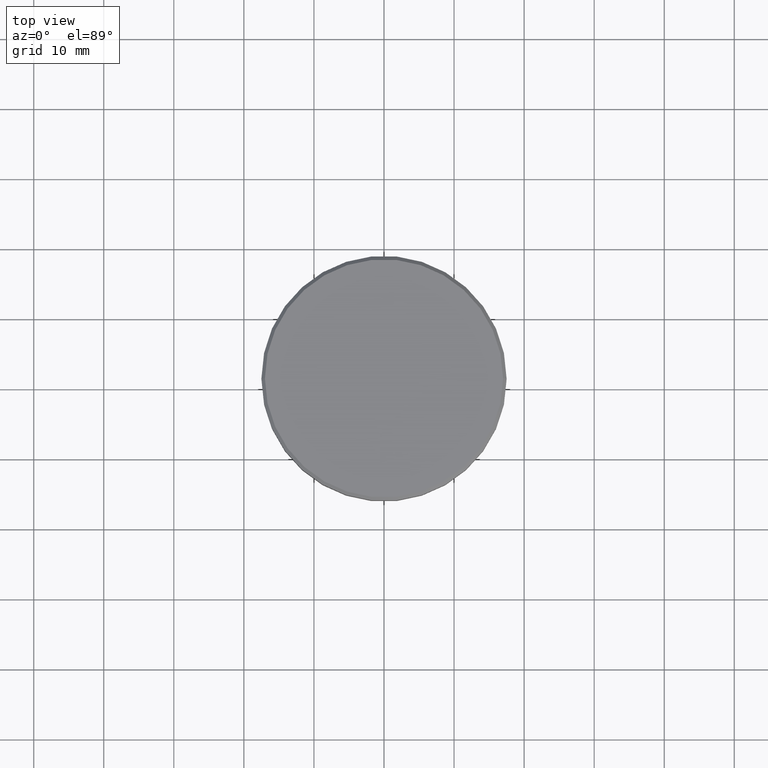
[diagram: clean part render]
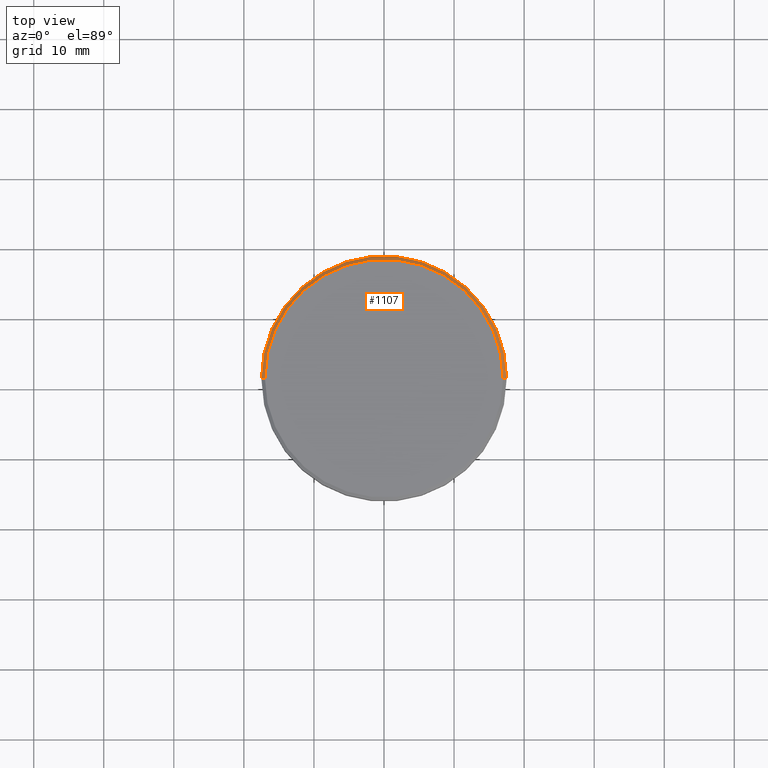
[diagram: same view with one face highlighted and labeled with its STEP entity id]
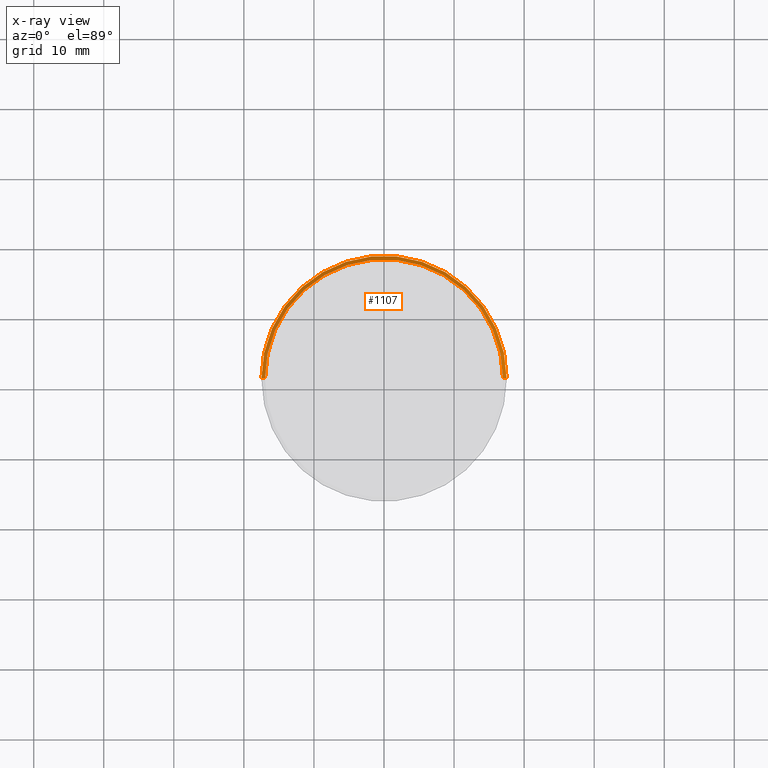
[diagram: x-ray of the same camera — body ghosted, the highlighted face saturated]
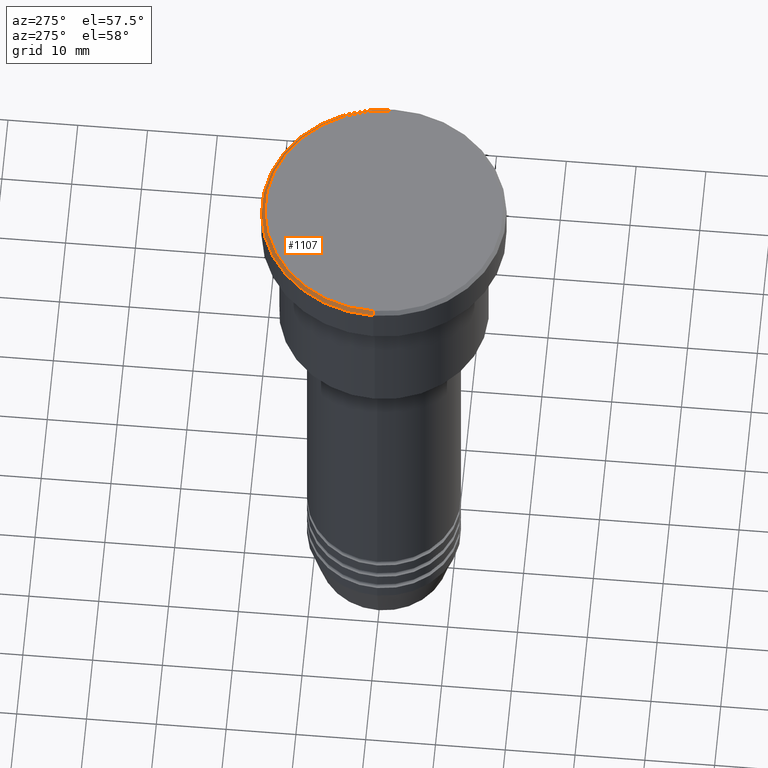
[diagram: same view with one face highlighted and labeled with its STEP entity id]
A machine part, top view. The second image highlights one B-rep face of the part: STEP entity #1107.
The next image is the same camera in x-ray: the body ghosted, the highlighted face saturated — about 0% of this face is hidden behind the body in this view.
A second angle (auxiliary view) of the same face is appended — the face is thin or edge-on in the first view.
In plain terms, the highlighted conical surface has half-angle 45 deg.
Its self-contained STEP definition (entity closure, byte-faithful):
#7 = ORIENTED_EDGE ( 'NONE', *, *, #210, .F. ) ;
#30 = CARTESIAN_POINT ( 'NONE',  ( 0.000000000000000000, 0.000000000000000000, 0.000000000000000000 ) ) ;
#111 = DIRECTION ( 'NONE',  ( 0.7071067811865474617, 8.659560562354932858E-17, -0.7071067811865474617 ) ) ;
#132 = LINE ( 'NONE', #499, #1138 ) ;
#155 = FACE_OUTER_BOUND ( 'NONE', #690, .T. ) ;
#169 = EDGE_CURVE ( 'NONE', #450, #250, #132, .T. ) ;
#177 = CONICAL_SURFACE ( 'NONE', #479, 17.00000000000002842, 0.7853981633974482790 ) ;
#210 = EDGE_CURVE ( 'NONE', #250, #271, #781, .T. ) ;
#250 = VERTEX_POINT ( 'NONE', #761 ) ;
#253 = EDGE_CURVE ( 'NONE', #687, #271, #1026, .T. ) ;
#263 = ORIENTED_EDGE ( 'NONE', *, *, #253, .T. ) ;
#271 = VERTEX_POINT ( 'NONE', #772 ) ;
#415 = EDGE_CURVE ( 'NONE', #687, #450, #1076, .T. ) ;
#450 = VERTEX_POINT ( 'NONE', #1153 ) ;
#479 = AXIS2_PLACEMENT_3D ( 'NONE', #1071, #815, #1166 ) ;
#481 = CARTESIAN_POINT ( 'NONE',  ( 17.00000000000002842, 2.081899558550503830E-15, 0.000000000000000000 ) ) ;
#499 = CARTESIAN_POINT ( 'NONE',  ( -17.00000000000002842, 0.000000000000000000, 0.000000000000000000 ) ) ;
#591 = ORIENTED_EDGE ( 'NONE', *, *, #415, .F. ) ;
#603 = VECTOR ( 'NONE', #111, 1000.000000000000114 ) ;
#647 = AXIS2_PLACEMENT_3D ( 'NONE', #30, #766, #673 ) ;
#673 = DIRECTION ( 'NONE',  ( 1.000000000000000000, 0.000000000000000000, 0.000000000000000000 ) ) ;
#680 = ORIENTED_EDGE ( 'NONE', *, *, #169, .F. ) ;
#687 = VERTEX_POINT ( 'NONE', #939 ) ;
#690 = EDGE_LOOP ( 'NONE', ( #591, #263, #7, #680 ) ) ;
#761 = CARTESIAN_POINT ( 'NONE',  ( -17.50000000000000000, 2.143131898507868248E-15, -0.4999999999999726885 ) ) ;
#766 = DIRECTION ( 'NONE',  ( -0.000000000000000000, -0.000000000000000000, 1.000000000000000000 ) ) ;
#772 = CARTESIAN_POINT ( 'NONE',  ( 17.50000000000000000, 0.000000000000000000, -0.4999999999999726885 ) ) ;
#781 = CIRCLE ( 'NONE', #1093, 17.50000000000000000 ) ;
#800 = CARTESIAN_POINT ( 'NONE',  ( 0.000000000000000000, 0.000000000000000000, -0.4999999999999726885 ) ) ;
#815 = DIRECTION ( 'NONE',  ( 0.000000000000000000, 0.000000000000000000, -1.000000000000000000 ) ) ;
#831 = DIRECTION ( 'NONE',  ( -0.7071067811865474617, 0.000000000000000000, -0.7071067811865474617 ) ) ;
#939 = CARTESIAN_POINT ( 'NONE',  ( 17.00000000000002842, 2.112515728529186039E-15, 0.000000000000000000 ) ) ;
#962 = DIRECTION ( 'NONE',  ( 0.000000000000000000, 0.000000000000000000, -1.000000000000000000 ) ) ;
#1026 = LINE ( 'NONE', #481, #603 ) ;
#1071 = CARTESIAN_POINT ( 'NONE',  ( 0.000000000000000000, 0.000000000000000000, 0.000000000000000000 ) ) ;
#1076 = CIRCLE ( 'NONE', #647, 17.00000000000002842 ) ;
#1082 = DIRECTION ( 'NONE',  ( 1.000000000000000000, 0.000000000000000000, 0.000000000000000000 ) ) ;
#1093 = AXIS2_PLACEMENT_3D ( 'NONE', #800, #962, #1082 ) ;
#1107 = ADVANCED_FACE ( 'NONE', ( #155 ), #177, .T. ) ;
#1138 = VECTOR ( 'NONE', #831, 1000.000000000000114 ) ;
#1153 = CARTESIAN_POINT ( 'NONE',  ( -17.00000000000002842, 0.000000000000000000, 0.000000000000000000 ) ) ;
#1166 = DIRECTION ( 'NONE',  ( -1.000000000000000000, 0.000000000000000000, 0.000000000000000000 ) ) ;